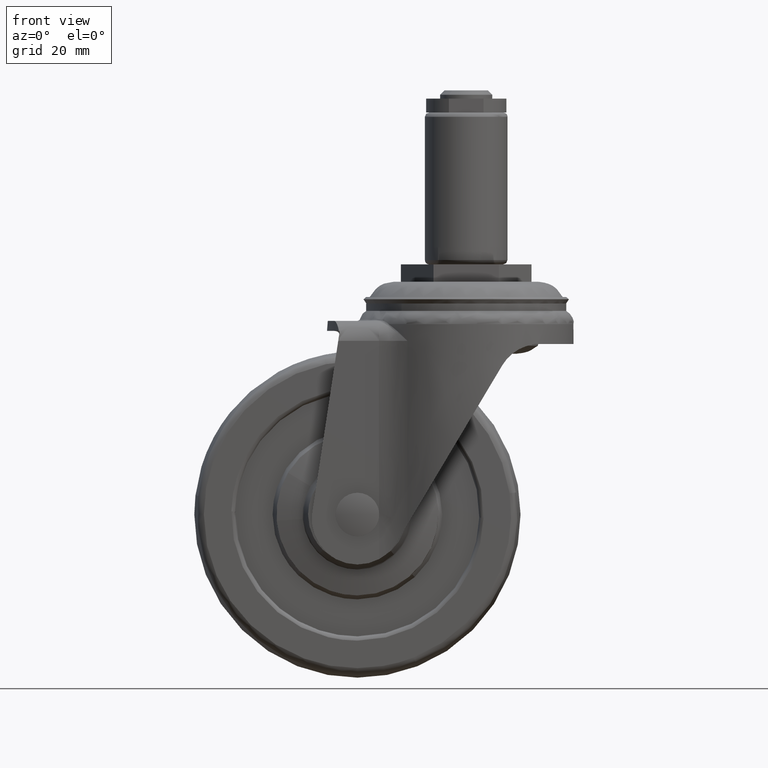
[diagram: clean part render]
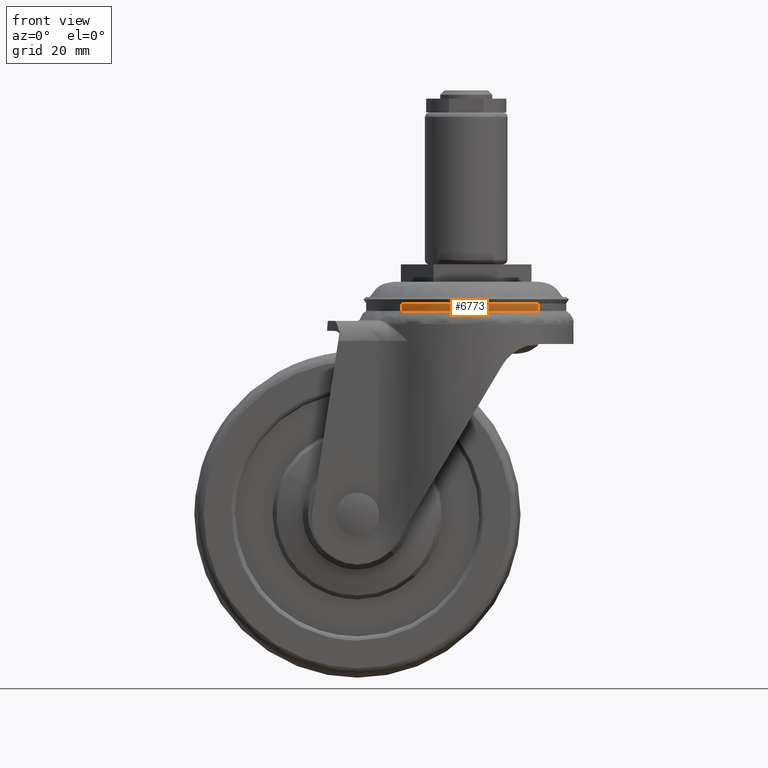
[diagram: same view with one face highlighted and labeled with its STEP entity id]
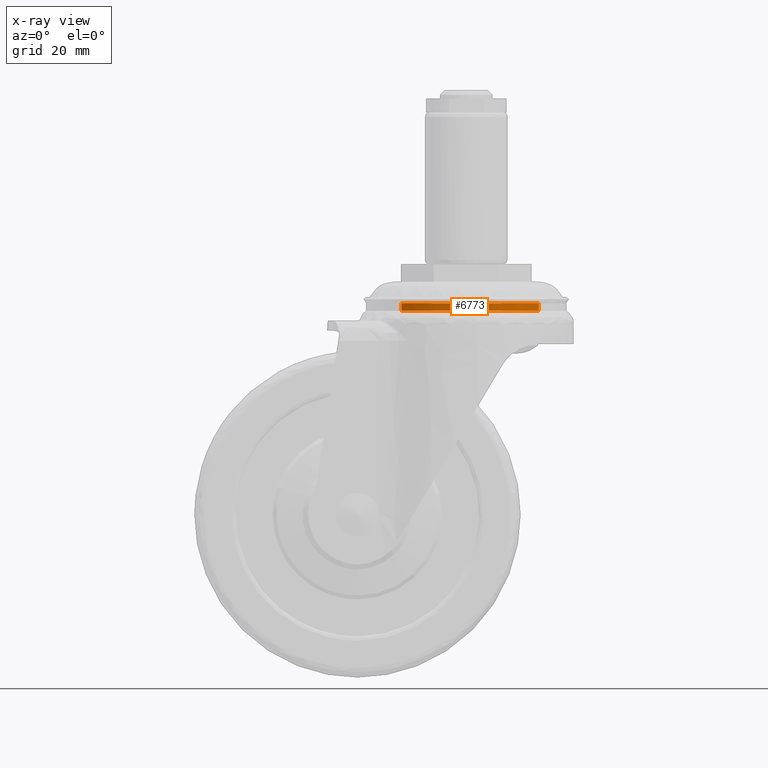
[diagram: x-ray of the same camera — body ghosted, the highlighted face saturated]
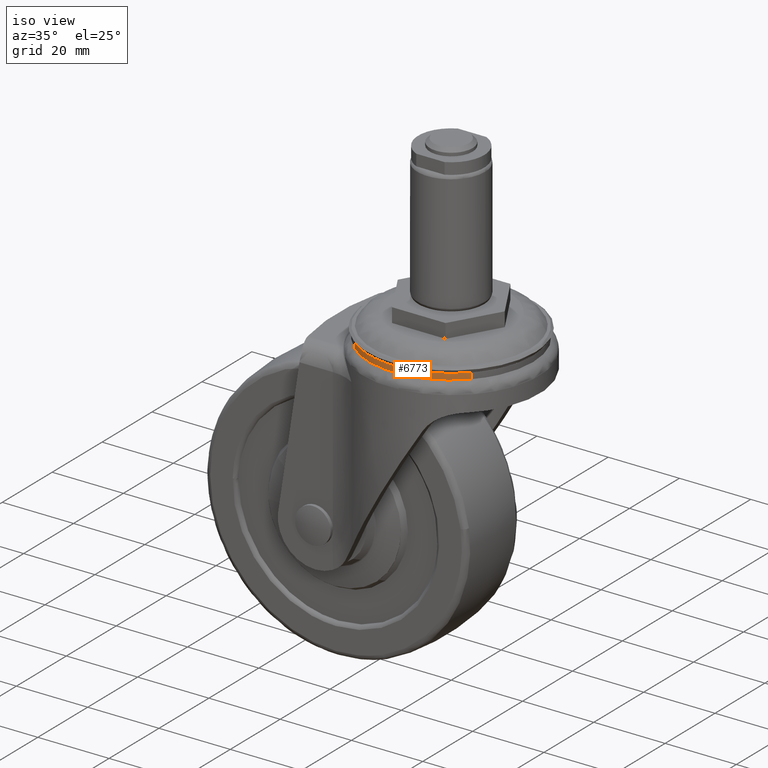
[diagram: same view with one face highlighted and labeled with its STEP entity id]
A machine part, front view. The second image highlights one B-rep face of the part: STEP entity #6773.
The next image is the same camera in x-ray: the body ghosted, the highlighted face saturated — about 0% of this face is hidden behind the body in this view.
A second angle (iso view) of the same face is appended — the face is thin or edge-on in the first view.
In plain terms, the highlighted face is a freeform B-spline surface patch.
Its self-contained STEP definition (entity closure, byte-faithful):
#6538=CARTESIAN_POINT('',(-14.852065020905229,-17.561782391905190,-8.699832059837007));
#6539=VERTEX_POINT('',#6538);
#6564=CARTESIAN_POINT('',(-14.852067146375090,-17.561780097857000,-6.984999999999899));
#6565=VERTEX_POINT('',#6564);
#6566=CARTESIAN_POINT('',(-14.852067146375090,-17.561780097857000,-6.984999999999899));
#6567=CARTESIAN_POINT('',(-14.852065020905229,-17.561782391905190,-8.699832059837007));
#6568=QUASI_UNIFORM_CURVE('',1,(#6566,#6567),.UNSPECIFIED.,.F.,.U.);
#6569=EDGE_CURVE('',#6565,#6539,#6568,.T.);
#6620=CARTESIAN_POINT('',(16.683610249999969,-15.832154940582910,-6.984999999999293));
#6621=VERTEX_POINT('',#6620);
#6633=CARTESIAN_POINT('',(16.683612138981928,-15.832153562369820,-8.699997563917227));
#6634=VERTEX_POINT('',#6633);
#6635=CARTESIAN_POINT('',(16.683610249999969,-15.832154940582910,-6.984999999999293));
#6636=CARTESIAN_POINT('',(16.683612138981928,-15.832153562369820,-8.699997563917227));
#6637=QUASI_UNIFORM_CURVE('',1,(#6635,#6636),.UNSPECIFIED.,.F.,.U.);
#6638=EDGE_CURVE('',#6621,#6634,#6637,.T.);
#6711=CARTESIAN_POINT('',(16.683610533282611,-15.832155240956340,-6.942118287006348));
#6712=CARTESIAN_POINT('',(1.732460270442387,-31.587380238026594,-6.942118287006347));
#6713=CARTESIAN_POINT('',(-14.852066882786582,-17.561779787630691,-6.942118287006348));
#6714=CARTESIAN_POINT('',(16.683610533282611,-15.832155240956340,-8.744222275560304));
#6715=CARTESIAN_POINT('',(1.732460270442387,-31.587380238026594,-8.744222275560302));
#6716=CARTESIAN_POINT('',(-14.852066882786582,-17.561779787630691,-8.744222275560304));
#6724=(BOUNDED_SURFACE()B_SPLINE_SURFACE(2,1,((#6711,#6714),(#6712,#6715),(#6713,#6716)),.UNSPECIFIED.,.F.,.F.,.U.)B_SPLINE_SURFACE_WITH_KNOTS((3,3),(2,2),(0.0,36.573301850302173),(0.0,1.0),.UNSPECIFIED.)GEOMETRIC_REPRESENTATION_ITEM()RATIONAL_B_SPLINE_SURFACE(((1.0,1.0),(0.718822509939086,0.718822509939086),(0.977505800795127,0.977505800795127)))REPRESENTATION_ITEM('')SURFACE());
#6725=CARTESIAN_POINT('',(16.683612138981928,-15.832153562369820,-8.699997563917227));
#6726=CARTESIAN_POINT('',(16.545486518673918,-15.977707630057010,-8.699998158157372));
#6727=CARTESIAN_POINT('',(16.405423550226320,-16.121488385226250,-8.699999125113456));
#6728=CARTESIAN_POINT('',(16.263455917378199,-16.263456017202991,-8.700000614903406));
#6729=CARTESIAN_POINT('',(14.127707917964059,-18.399204003507940,-8.700023027166283));
#6730=CARTESIAN_POINT('',(11.592208072719711,-20.093370821761159,-8.700021760962889));
#6731=CARTESIAN_POINT('',(8.801718837101769,-21.249229292297379,-8.699999411967328));
#6732=CARTESIAN_POINT('',(6.011229844681479,-22.405087662097831,-8.699977062973716));
#6733=CARTESIAN_POINT('',(3.020403354056016,-23.000000020951340,-8.699786002614534));
#6734=CARTESIAN_POINT('',(-0.000000159541516,-23.000000000000050,-8.699844343989003));
#6735=CARTESIAN_POINT('',(-3.020404068780024,-22.999999979048749,-8.699902685371114));
#6736=CARTESIAN_POINT('',(-6.011230188946746,-22.405087622894989,-8.699785250419422));
#6737=CARTESIAN_POINT('',(-8.801719509709303,-21.249229013602950,-8.699851451373908));
#6738=CARTESIAN_POINT('',(-11.000408437169710,-20.338502171879821,-8.699903612586112));
#6739=CARTESIAN_POINT('',(-13.040794415301860,-19.093581827111709,-8.699835439398916));
#6740=CARTESIAN_POINT('',(-14.852065020905229,-17.561782391905190,-8.699832059837007));
#6741=B_SPLINE_CURVE_WITH_KNOTS('',3,(#6725,#6726,#6727,#6728,#6729,#6730,#6731,#6732,#6733,#6734,#6735,#6736,#6737,#6738,#6739,#6740),.UNSPECIFIED.,.F.,.U.,(4,3,3,3,3,4),(17.476399539343600,18.078717192887162,27.139928525075870,36.201139067558849,45.262350796964753,52.401882115212111),.UNSPECIFIED.);
#6742=EDGE_CURVE('',#6634,#6539,#6741,.T.);
#6743=ORIENTED_EDGE('',*,*,#6742,.F.);
#6744=ORIENTED_EDGE('',*,*,#6638,.F.);
#6745=CARTESIAN_POINT('',(-0.000001651260550,-22.999999999999940,-6.984999999999900));
#6746=VERTEX_POINT('',#6745);
#6747=CARTESIAN_POINT('',(16.683610249999969,-15.832154940582910,-6.984999999999293));
#6748=CARTESIAN_POINT('',(15.613010121141050,-16.960670709220999,-6.984999999999351));
#6749=CARTESIAN_POINT('',(13.871449629470879,-18.457503510638070,-6.984999999999354));
#6750=CARTESIAN_POINT('',(11.110837715769190,-20.192549852148620,-6.984999999999537));
#6751=CARTESIAN_POINT('',(8.786526682558428,-21.315842175539672,-6.984999999999577));
#6752=CARTESIAN_POINT('',(6.298906032797643,-22.167062795223519,-6.984999999999666));
#6753=CARTESIAN_POINT('',(3.402676629183112,-22.820574017756879,-6.984999999999721));
#6754=CARTESIAN_POINT('',(1.312479701689315,-23.000110477829910,-6.984999999999971));
#6755=CARTESIAN_POINT('',(-0.000001651260550,-22.999999999999940,-6.984999999999900));
#6756=B_SPLINE_CURVE_WITH_KNOTS('',3,(#6747,#6748,#6749,#6750,#6751,#6752,#6753,#6754,#6755),.UNSPECIFIED.,.F.,.U.,(4,1,1,1,1,1,4),(0.000000022270552,4.666582454974712,6.854045660148612,9.770650144011542,12.395599333980091,14.728904023631740,18.666329123581960),.UNSPECIFIED.);
#6757=EDGE_CURVE('',#6621,#6746,#6756,.T.);
#6758=ORIENTED_EDGE('',*,*,#6757,.T.);
#6759=CARTESIAN_POINT('',(-0.000001651260550,-22.999999999999940,-6.984999999999900));
#6760=CARTESIAN_POINT('',(-1.177306499647368,-23.000064518497460,-6.984999999999898));
#6761=CARTESIAN_POINT('',(-3.321666696019149,-22.834994739508499,-6.984999999999897));
#6762=CARTESIAN_POINT('',(-6.037262556693930,-22.237312537199841,-6.984999999999911));
#6763=CARTESIAN_POINT('',(-8.513221204781191,-21.414505416243241,-6.984999999999893));
#6764=CARTESIAN_POINT('',(-11.465482602699950,-20.068548524830138,-6.984999999999934));
#6765=CARTESIAN_POINT('',(-13.632237963875280,-18.593749733383081,-6.984999999999939));
#6766=CARTESIAN_POINT('',(-14.852067146375090,-17.561780097857000,-6.984999999999899));
#6767=B_SPLINE_CURVE_WITH_KNOTS('',3,(#6759,#6760,#6761,#6762,#6763,#6764,#6765,#6766),.UNSPECIFIED.,.F.,.U.,(4,1,1,1,1,4),(0.000000015836523,3.531912341465878,6.433137357118671,8.325219808810807,11.352580593406930,16.145896919281991),.UNSPECIFIED.);
#6768=EDGE_CURVE('',#6746,#6565,#6767,.T.);
#6769=ORIENTED_EDGE('',*,*,#6768,.T.);
#6770=ORIENTED_EDGE('',*,*,#6569,.T.);
#6771=EDGE_LOOP('',(#6743,#6744,#6758,#6769,#6770));
#6772=FACE_OUTER_BOUND('',#6771,.T.);
#6773=ADVANCED_FACE('',(#6772),#6724,.T.);